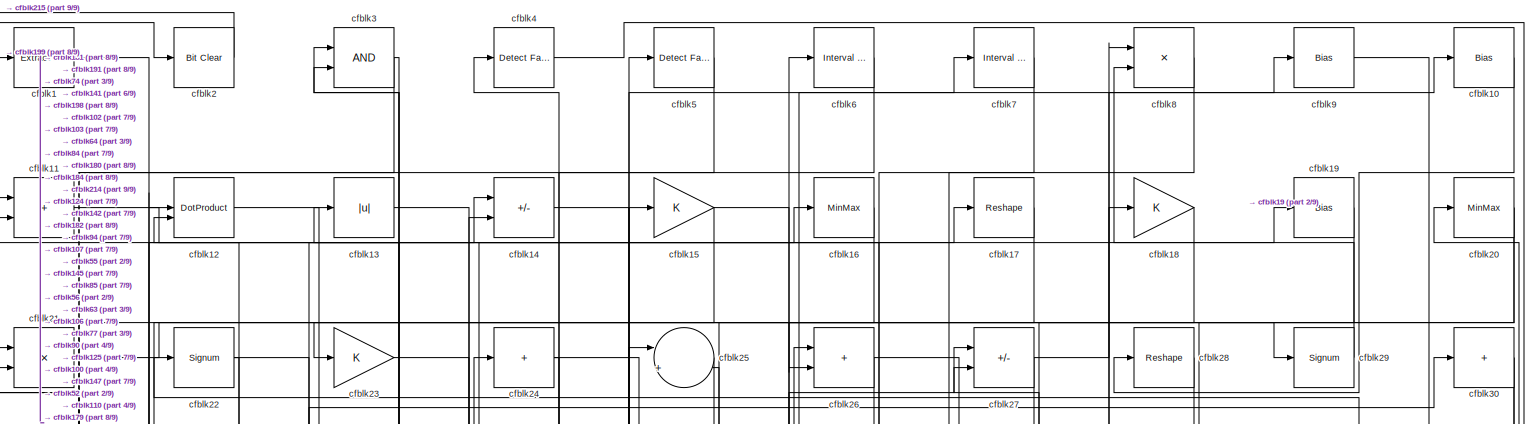
[diagram: root canvas - part 1/9, full width, top band]
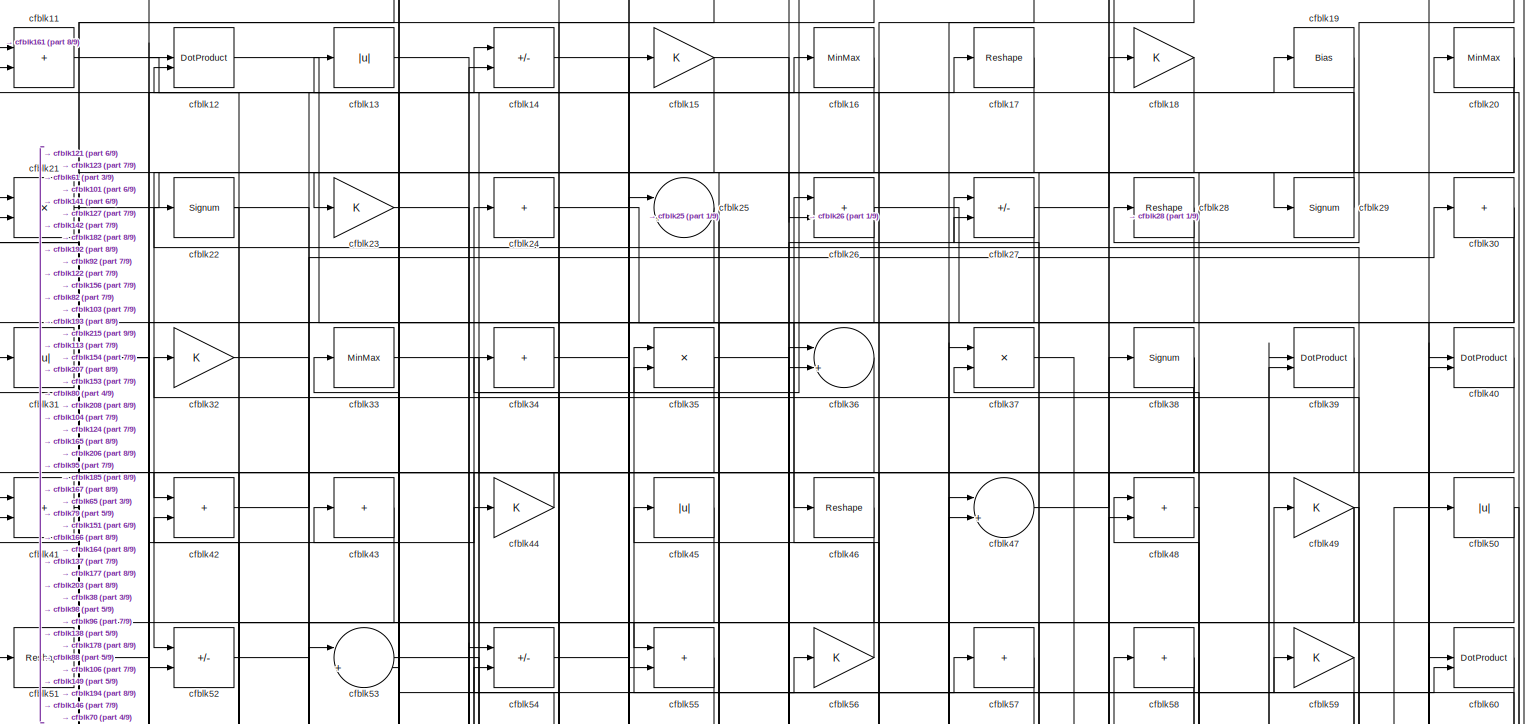
[diagram: root canvas - part 2/9, full width, top band]
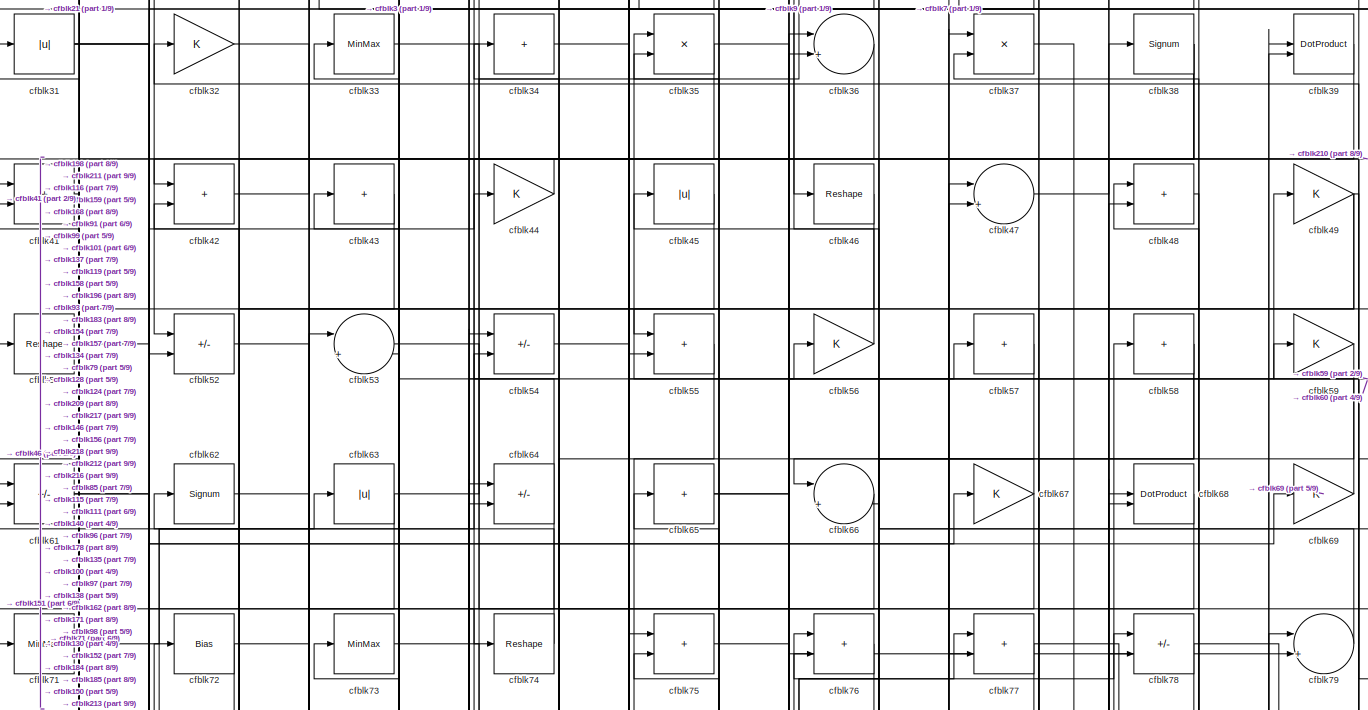
[diagram: root canvas - part 3/9, full width, top band]
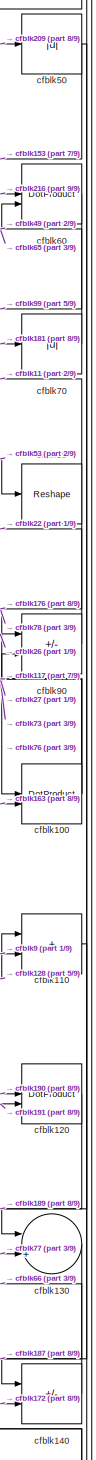
[diagram: root canvas - part 4/9, middle right region]
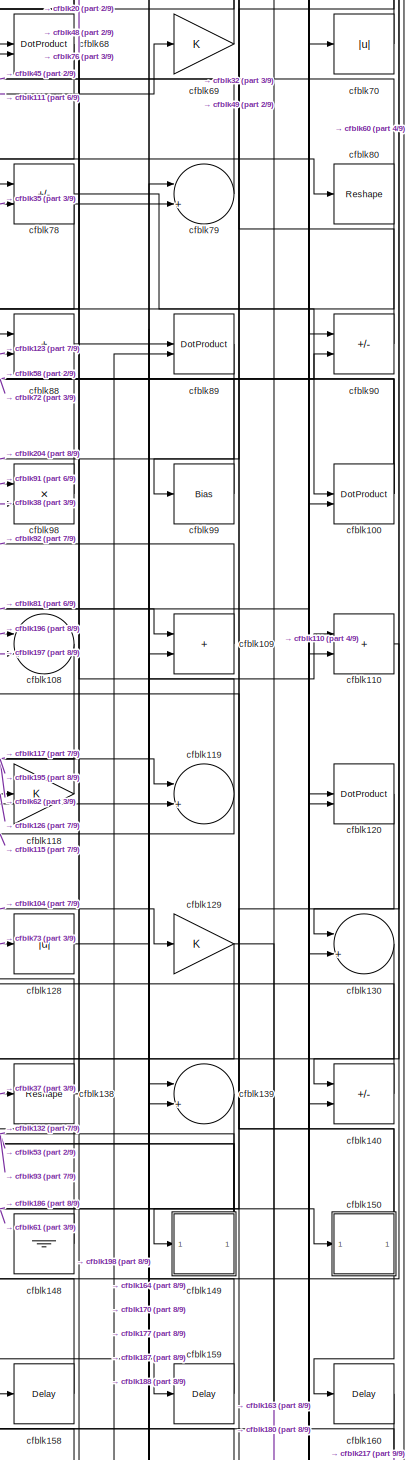
[diagram: root canvas - part 5/9, middle right region]
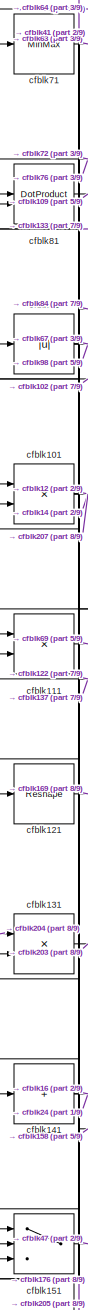
[diagram: root canvas - part 6/9, middle left region]
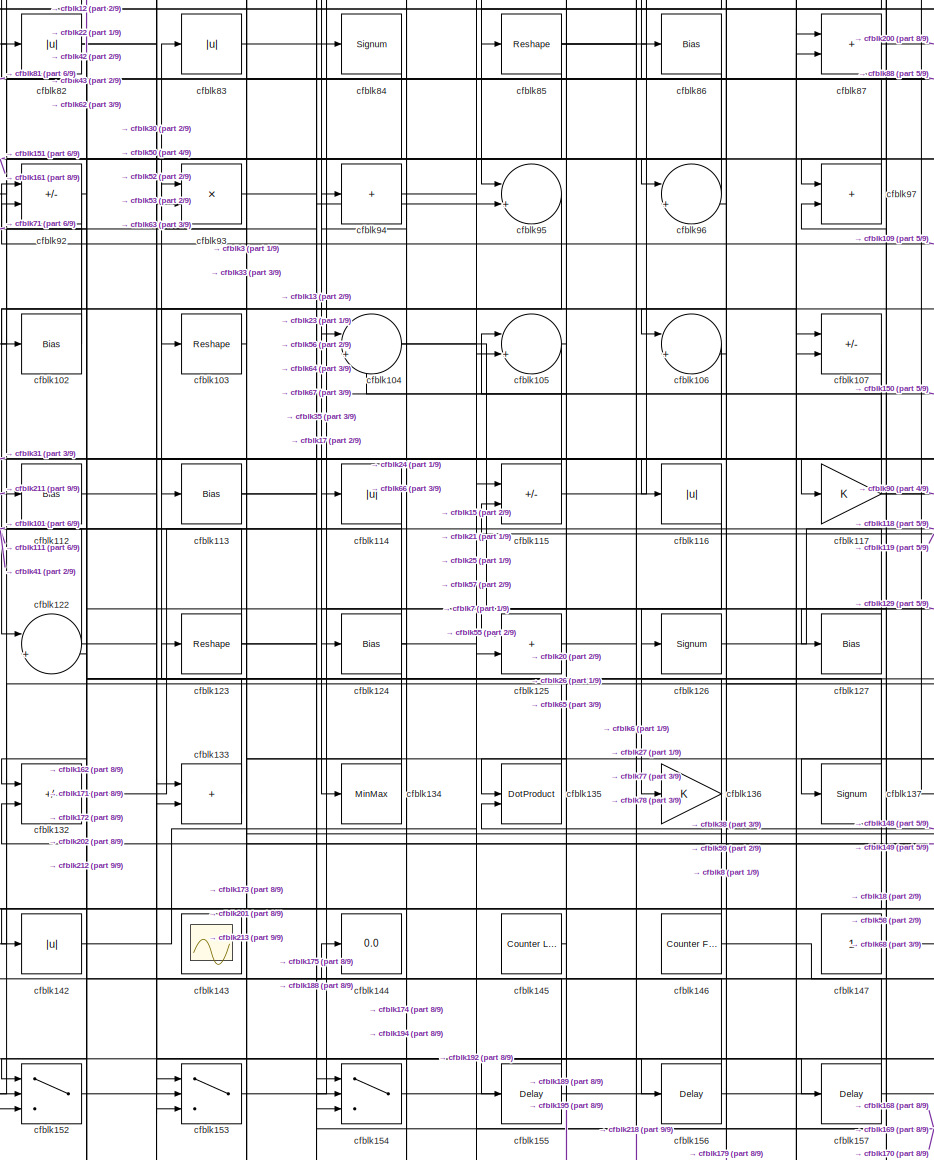
[diagram: root canvas - part 7/9, central region]
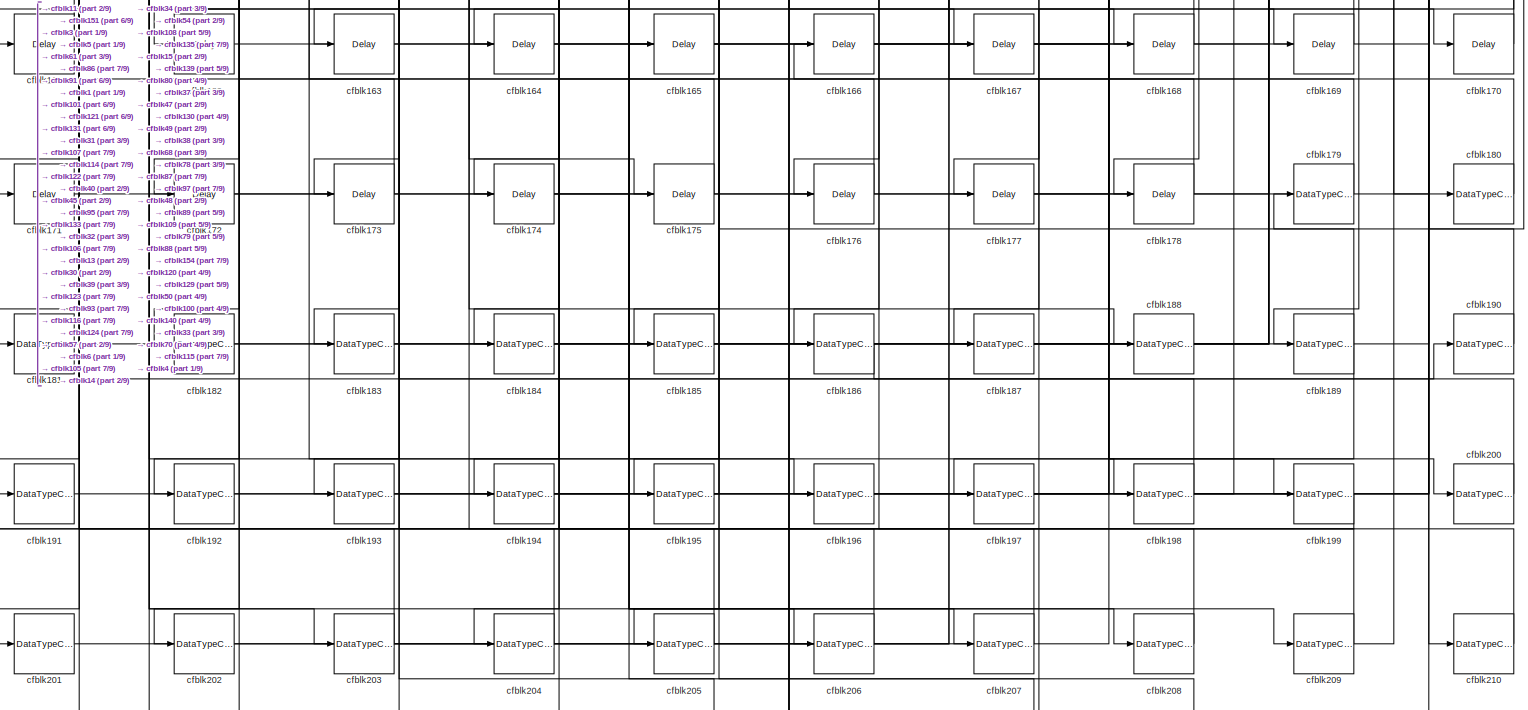
[diagram: root canvas - part 8/9, full width, bottom band]
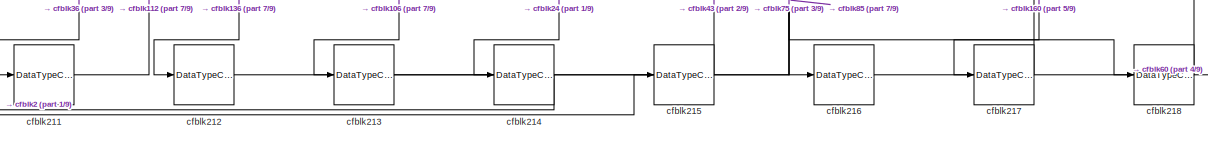
[diagram: root canvas - part 9/9, full width, bottom band]
MODEL slx_8fde7ab5940d
KIND model
CONFIG AbsTol = auto
CONFIG EnableMultiTasking = off
CONFIG FixedStep = auto
CONFIG MaxStep = auto
CONFIG MinStep = auto
CONFIG RelTol = 1e-3
CONFIG SampleTimeConstraint = Unconstrained
CONFIG SolverName = VariableStepAuto
CONFIG StartTime = 0.0
CONFIG StopTime = 10.0
BLOCK [Reference] cfblk1  REF=simulink/Logic and Bit
Operations/Extract Bits
  LibrarySourceBlock = hdlsllib/Logic and Bit\nOperations/Extract Bits
  SourceBlock = simulink/Logic and Bit\nOperations/Extract Bits
  SourceType = Extract Bits
BLOCK [Bias] cfblk10
  Bias = 0.0
  SaturateOnIntegerOverflow = off
BLOCK [DotProduct] cfblk100
  OutDataTypeStr = Inherit: Inherit via internal rule
BLOCK [Product] cfblk101
  Inputs = */
  RndMeth = Zero
  SaturateOnIntegerOverflow = on
BLOCK [Bias] cfblk102
  Bias = 0.0
  SaturateOnIntegerOverflow = off
BLOCK [Reshape] cfblk103
BLOCK [Sum] cfblk104
  Inputs = |++
BLOCK [Sum] cfblk105
  Inputs = |++
BLOCK [Sum] cfblk106
  Inputs = |++
BLOCK [Sum] cfblk107
  IconShape = rectangular
  Inputs = +-
BLOCK [Sum] cfblk108
  Inputs = |++
BLOCK [Sum] cfblk109
  IconShape = rectangular
BLOCK [Sum] cfblk11
  IconShape = rectangular
BLOCK [Sum] cfblk110
  IconShape = rectangular
BLOCK [Product] cfblk111
  Inputs = */
  RndMeth = Zero
  SaturateOnIntegerOverflow = on
BLOCK [Bias] cfblk112
  Bias = 0.0
  SaturateOnIntegerOverflow = off
BLOCK [Bias] cfblk113
  Bias = 0.0
  SaturateOnIntegerOverflow = off
BLOCK [Abs] cfblk114
  SaturateOnIntegerOverflow = off
BLOCK [Sum] cfblk115
  IconShape = rectangular
  Inputs = +-
BLOCK [Abs] cfblk116
  SaturateOnIntegerOverflow = off
BLOCK [Gain] cfblk117
BLOCK [Gain] cfblk118
BLOCK [Sum] cfblk119
  Inputs = |++
BLOCK [DotProduct] cfblk12
  OutDataTypeStr = Inherit: Inherit via internal rule
BLOCK [DotProduct] cfblk120
  OutDataTypeStr = Inherit: Inherit via internal rule
BLOCK [Reshape] cfblk121
BLOCK [Sum] cfblk122
  Inputs = |++
BLOCK [Reshape] cfblk123
BLOCK [Bias] cfblk124
  Bias = 0.0
  SaturateOnIntegerOverflow = off
BLOCK [Sum] cfblk125
  IconShape = rectangular
BLOCK [Signum] cfblk126
BLOCK [Bias] cfblk127
  Bias = 0.0
  SaturateOnIntegerOverflow = off
BLOCK [Abs] cfblk128
  SaturateOnIntegerOverflow = off
BLOCK [Gain] cfblk129
BLOCK [Abs] cfblk13
  SaturateOnIntegerOverflow = off
BLOCK [Sum] cfblk130
  Inputs = |++
BLOCK [Product] cfblk131
  Inputs = */
  RndMeth = Zero
  SaturateOnIntegerOverflow = on
BLOCK [Sum] cfblk132
  IconShape = rectangular
  Inputs = +-
BLOCK [Sum] cfblk133
  IconShape = rectangular
BLOCK [MinMax] cfblk134
BLOCK [DotProduct] cfblk135
  OutDataTypeStr = Inherit: Inherit via internal rule
BLOCK [Gain] cfblk136
BLOCK [Signum] cfblk137
BLOCK [Reshape] cfblk138
BLOCK [Sum] cfblk139
  Inputs = |++
BLOCK [Sum] cfblk14
  IconShape = rectangular
  Inputs = +-
BLOCK [Sum] cfblk140
  IconShape = rectangular
  Inputs = +-
BLOCK [Sum] cfblk141
  IconShape = rectangular
  Inputs = +
BLOCK [Abs] cfblk142
  SaturateOnIntegerOverflow = off
BLOCK [Scope] cfblk143
  Floating = on
  NumInputPorts = 1
  ScopeSpecificationString = Simulink.scopes.TimeScopeBlockCfg('CurrentConfiguration', extmgr.ConfigurationSet(extmgr.Configuration('Core','General UI',true,'FigureColor',[0.156862745098039 0.156862745098039 0.156862745098039]),extmgr.Configuration('Core','Source UI',true),extmgr.Configuration('Sources','WiredSimulink',true,'DataLoggingVariableName','ScopeData1','DataLoggingSaveFormat','StructureWithTime','DataLoggingLimitDat...<+2713ch>
BLOCK [Display] cfblk144
  Decimation = 1
BLOCK [Reference] cfblk145  REF=hdlsllib/Sources/Counter
Limited
  SourceBlock = hdlsllib/Sources/Counter\nLimited
  SourceType = Counter Limited
BLOCK [Reference] cfblk146  REF=hdlsllib/Sources/Counter
Free-Running
  SourceBlock = hdlsllib/Sources/Counter\nFree-Running
  SourceType = Counter Free-Running
BLOCK [Constant] cfblk147
  SampleTime = -1
BLOCK [Ground] cfblk148
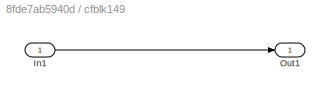
BLOCK [SubSystem] cfblk149
  LibrarySourceBlock = hdlsllib/Ports &\nSubsystems/Subsystem
BLOCK [Inport] cfblk149/In1
BLOCK [Outport] cfblk149/Out1
BLOCK [Gain] cfblk15
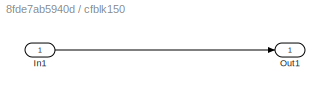
BLOCK [SubSystem] cfblk150
  LibrarySourceBlock = hdlsllib/Ports &\nSubsystems/Subsystem
BLOCK [Inport] cfblk150/In1
BLOCK [Outport] cfblk150/Out1
BLOCK [Switch] cfblk151
  InputSameDT = off
  SaturateOnIntegerOverflow = off
BLOCK [Switch] cfblk152
  InputSameDT = off
  SaturateOnIntegerOverflow = off
BLOCK [Switch] cfblk153
  InputSameDT = off
  SaturateOnIntegerOverflow = off
BLOCK [Switch] cfblk154
  InputSameDT = off
  SaturateOnIntegerOverflow = off
BLOCK [Delay] cfblk155
  InputPortMap = u0
  SampleTime = 1
BLOCK [Delay] cfblk156
  InputPortMap = u0
  SampleTime = 1
BLOCK [Delay] cfblk157
  InputPortMap = u0
  SampleTime = 1
BLOCK [Delay] cfblk158
  InputPortMap = u0
  SampleTime = 1
BLOCK [Delay] cfblk159
  InputPortMap = u0
  SampleTime = 1
BLOCK [MinMax] cfblk16
BLOCK [Delay] cfblk160
  InputPortMap = u0
  SampleTime = 1
BLOCK [Delay] cfblk161
  InputPortMap = u0
  SampleTime = 1
BLOCK [Delay] cfblk162
  InputPortMap = u0
  SampleTime = 1
BLOCK [Delay] cfblk163
  InputPortMap = u0
  SampleTime = 1
BLOCK [Delay] cfblk164
  InputPortMap = u0
  SampleTime = 1
BLOCK [Delay] cfblk165
  InputPortMap = u0
  SampleTime = 1
BLOCK [Delay] cfblk166
  InputPortMap = u0
  SampleTime = 1
BLOCK [Delay] cfblk167
  InputPortMap = u0
  SampleTime = 1
BLOCK [Delay] cfblk168
  InputPortMap = u0
  SampleTime = 1
BLOCK [Delay] cfblk169
  InputPortMap = u0
  SampleTime = 1
BLOCK [Reshape] cfblk17
BLOCK [Delay] cfblk170
  InputPortMap = u0
  SampleTime = 1
BLOCK [Delay] cfblk171
  InputPortMap = u0
  SampleTime = 1
BLOCK [Delay] cfblk172
  InputPortMap = u0
  SampleTime = 1
BLOCK [Delay] cfblk173
  InputPortMap = u0
  SampleTime = 1
BLOCK [Delay] cfblk174
  InputPortMap = u0
  SampleTime = 1
BLOCK [Delay] cfblk175
  InputPortMap = u0
  SampleTime = 1
BLOCK [Delay] cfblk176
  InputPortMap = u0
  SampleTime = 1
BLOCK [Delay] cfblk177
  InputPortMap = u0
  SampleTime = 1
BLOCK [Delay] cfblk178
  InputPortMap = u0
  SampleTime = 1
BLOCK [DataTypeConversion] cfblk179
  OutDataTypeStr = uint8
  RndMeth = Floor
  SaturateOnIntegerOverflow = off
BLOCK [Gain] cfblk18
BLOCK [DataTypeConversion] cfblk180
  OutDataTypeStr = uint8
  RndMeth = Floor
  SaturateOnIntegerOverflow = off
BLOCK [DataTypeConversion] cfblk181
  OutDataTypeStr = uint8
  RndMeth = Floor
  SaturateOnIntegerOverflow = off
BLOCK [DataTypeConversion] cfblk182
  OutDataTypeStr = uint8
  RndMeth = Floor
  SaturateOnIntegerOverflow = off
BLOCK [DataTypeConversion] cfblk183
  OutDataTypeStr = uint8
  RndMeth = Floor
  SaturateOnIntegerOverflow = off
BLOCK [DataTypeConversion] cfblk184
  OutDataTypeStr = uint8
  RndMeth = Floor
  SaturateOnIntegerOverflow = off
BLOCK [DataTypeConversion] cfblk185
  OutDataTypeStr = uint8
  RndMeth = Floor
  SaturateOnIntegerOverflow = off
BLOCK [DataTypeConversion] cfblk186
  OutDataTypeStr = uint8
  RndMeth = Floor
  SaturateOnIntegerOverflow = off
BLOCK [DataTypeConversion] cfblk187
  OutDataTypeStr = uint8
  RndMeth = Floor
  SaturateOnIntegerOverflow = off
BLOCK [DataTypeConversion] cfblk188
  OutDataTypeStr = uint8
  RndMeth = Floor
  SaturateOnIntegerOverflow = off
BLOCK [DataTypeConversion] cfblk189
  RndMeth = Floor
  SaturateOnIntegerOverflow = off
BLOCK [Bias] cfblk19
  Bias = 0.0
  SaturateOnIntegerOverflow = off
BLOCK [DataTypeConversion] cfblk190
  OutDataTypeStr = uint8
  RndMeth = Floor
  SaturateOnIntegerOverflow = off
BLOCK [DataTypeConversion] cfblk191
  OutDataTypeStr = uint8
  RndMeth = Floor
  SaturateOnIntegerOverflow = off
BLOCK [DataTypeConversion] cfblk192
  OutDataTypeStr = uint8
  RndMeth = Floor
  SaturateOnIntegerOverflow = off
BLOCK [DataTypeConversion] cfblk193
  OutDataTypeStr = uint8
  RndMeth = Floor
  SaturateOnIntegerOverflow = off
BLOCK [DataTypeConversion] cfblk194
  OutDataTypeStr = uint8
  RndMeth = Floor
  SaturateOnIntegerOverflow = off
BLOCK [DataTypeConversion] cfblk195
  OutDataTypeStr = uint8
  RndMeth = Floor
  SaturateOnIntegerOverflow = off
BLOCK [DataTypeConversion] cfblk196
  OutDataTypeStr = uint8
  RndMeth = Floor
  SaturateOnIntegerOverflow = off
BLOCK [DataTypeConversion] cfblk197
  OutDataTypeStr = uint8
  RndMeth = Floor
  SaturateOnIntegerOverflow = off
BLOCK [DataTypeConversion] cfblk198
  RndMeth = Floor
  SaturateOnIntegerOverflow = off
BLOCK [DataTypeConversion] cfblk199
  OutDataTypeStr = uint8
  RndMeth = Floor
  SaturateOnIntegerOverflow = off
BLOCK [Reference] cfblk2  REF=simulink/Logic and Bit
Operations/Bit Clear
  LibrarySourceBlock = hdlsllib/Logic and Bit\nOperations/Bit Clear
  SourceBlock = simulink/Logic and Bit\nOperations/Bit Clear
  SourceType = Bit Clear
BLOCK [MinMax] cfblk20
BLOCK [DataTypeConversion] cfblk200
  OutDataTypeStr = uint8
  RndMeth = Floor
  SaturateOnIntegerOverflow = off
BLOCK [DataTypeConversion] cfblk201
  OutDataTypeStr = uint8
  RndMeth = Floor
  SaturateOnIntegerOverflow = off
BLOCK [DataTypeConversion] cfblk202
  OutDataTypeStr = uint8
  RndMeth = Floor
  SaturateOnIntegerOverflow = off
BLOCK [DataTypeConversion] cfblk203
  RndMeth = Floor
  SaturateOnIntegerOverflow = off
BLOCK [DataTypeConversion] cfblk204
  OutDataTypeStr = uint8
  RndMeth = Floor
  SaturateOnIntegerOverflow = off
BLOCK [DataTypeConversion] cfblk205
  OutDataTypeStr = uint8
  RndMeth = Floor
  SaturateOnIntegerOverflow = off
BLOCK [DataTypeConversion] cfblk206
  OutDataTypeStr = uint8
  RndMeth = Floor
  SaturateOnIntegerOverflow = off
BLOCK [DataTypeConversion] cfblk207
  OutDataTypeStr = uint8
  RndMeth = Floor
  SaturateOnIntegerOverflow = off
BLOCK [DataTypeConversion] cfblk208
  OutDataTypeStr = uint8
  RndMeth = Floor
  SaturateOnIntegerOverflow = off
BLOCK [DataTypeConversion] cfblk209
  RndMeth = Floor
  SaturateOnIntegerOverflow = off
BLOCK [Product] cfblk21
  Inputs = */
  RndMeth = Zero
  SaturateOnIntegerOverflow = on
BLOCK [DataTypeConversion] cfblk210
  OutDataTypeStr = uint8
  RndMeth = Floor
  SaturateOnIntegerOverflow = off
BLOCK [DataTypeConversion] cfblk211
  OutDataTypeStr = uint8
  RndMeth = Floor
  SaturateOnIntegerOverflow = off
BLOCK [DataTypeConversion] cfblk212
  OutDataTypeStr = uint8
  RndMeth = Floor
  SaturateOnIntegerOverflow = off
BLOCK [DataTypeConversion] cfblk213
  OutDataTypeStr = uint8
  RndMeth = Floor
  SaturateOnIntegerOverflow = off
BLOCK [DataTypeConversion] cfblk214
  OutDataTypeStr = boolean
  RndMeth = Floor
  SaturateOnIntegerOverflow = off
BLOCK [DataTypeConversion] cfblk215
  OutDataTypeStr = uint8
  RndMeth = Floor
  SaturateOnIntegerOverflow = off
BLOCK [DataTypeConversion] cfblk216
  OutDataTypeStr = uint8
  RndMeth = Floor
  SaturateOnIntegerOverflow = off
BLOCK [DataTypeConversion] cfblk217
  OutDataTypeStr = uint8
  RndMeth = Floor
  SaturateOnIntegerOverflow = off
BLOCK [DataTypeConversion] cfblk218
  OutDataTypeStr = uint8
  RndMeth = Floor
  SaturateOnIntegerOverflow = off
BLOCK [Signum] cfblk22
BLOCK [Gain] cfblk23
BLOCK [Sum] cfblk24
  IconShape = rectangular
  Inputs = +
BLOCK [Sum] cfblk25
  Inputs = |++
BLOCK [Sum] cfblk26
  IconShape = rectangular
BLOCK [Sum] cfblk27
  IconShape = rectangular
  Inputs = +-
BLOCK [Reshape] cfblk28
BLOCK [Signum] cfblk29
BLOCK [Logic] cfblk3
  AllPortsSameDT = off
  OutDataTypeStr = boolean
BLOCK [Sum] cfblk30
  IconShape = rectangular
  Inputs = +
BLOCK [Abs] cfblk31
  SaturateOnIntegerOverflow = off
BLOCK [Gain] cfblk32
BLOCK [MinMax] cfblk33
BLOCK [Sum] cfblk34
  IconShape = rectangular
  Inputs = +
BLOCK [Product] cfblk35
  Inputs = */
  RndMeth = Zero
  SaturateOnIntegerOverflow = on
BLOCK [Sum] cfblk36
  Inputs = |++
BLOCK [Product] cfblk37
  Inputs = */
  RndMeth = Zero
  SaturateOnIntegerOverflow = on
BLOCK [Signum] cfblk38
BLOCK [DotProduct] cfblk39
  OutDataTypeStr = Inherit: Inherit via internal rule
BLOCK [Reference] cfblk4  REF=hdlsllib/Logic and Bit
Operations/Detect Fall
Negative
  SourceBlock = hdlsllib/Logic and Bit\nOperations/Detect Fall\nNegative
  SourceType = Detect Fall Negative
BLOCK [DotProduct] cfblk40
  OutDataTypeStr = Inherit: Inherit via internal rule
BLOCK [Sum] cfblk41
  IconShape = rectangular
BLOCK [Sum] cfblk42
  IconShape = rectangular
BLOCK [Sum] cfblk43
  IconShape = rectangular
  Inputs = +
BLOCK [Gain] cfblk44
BLOCK [Abs] cfblk45
  SaturateOnIntegerOverflow = off
BLOCK [Reshape] cfblk46
BLOCK [Sum] cfblk47
  Inputs = |++
BLOCK [Sum] cfblk48
  IconShape = rectangular
BLOCK [Gain] cfblk49
BLOCK [Reference] cfblk5  REF=hdlsllib/Logic and Bit
Operations/Detect Fall
Negative
  SourceBlock = hdlsllib/Logic and Bit\nOperations/Detect Fall\nNegative
  SourceType = Detect Fall Negative
BLOCK [Abs] cfblk50
  SaturateOnIntegerOverflow = off
BLOCK [Reshape] cfblk51
BLOCK [Sum] cfblk52
  IconShape = rectangular
  Inputs = +-
BLOCK [Sum] cfblk53
  Inputs = |++
BLOCK [Sum] cfblk54
  IconShape = rectangular
  Inputs = +-
BLOCK [Sum] cfblk55
  IconShape = rectangular
BLOCK [Gain] cfblk56
BLOCK [Sum] cfblk57
  IconShape = rectangular
  Inputs = +
BLOCK [Sum] cfblk58
  IconShape = rectangular
  Inputs = +
BLOCK [Gain] cfblk59
BLOCK [Reference] cfblk6  REF=hdlsllib/Logic and Bit
Operations/Interval Test
  SourceBlock = hdlsllib/Logic and Bit\nOperations/Interval Test
  SourceType = Interval Test
BLOCK [DotProduct] cfblk60
  OutDataTypeStr = Inherit: Inherit via internal rule
BLOCK [Sum] cfblk61
  IconShape = rectangular
  Inputs = +-
BLOCK [Signum] cfblk62
BLOCK [Abs] cfblk63
  SaturateOnIntegerOverflow = off
BLOCK [Sum] cfblk64
  IconShape = rectangular
  Inputs = +-
BLOCK [Sum] cfblk65
  IconShape = rectangular
  Inputs = +
BLOCK [Sum] cfblk66
  Inputs = |++
BLOCK [Gain] cfblk67
BLOCK [DotProduct] cfblk68
  OutDataTypeStr = Inherit: Inherit via internal rule
BLOCK [Gain] cfblk69
BLOCK [Reference] cfblk7  REF=hdlsllib/Logic and Bit
Operations/Interval Test
  SourceBlock = hdlsllib/Logic and Bit\nOperations/Interval Test
  SourceType = Interval Test
BLOCK [Abs] cfblk70
  SaturateOnIntegerOverflow = off
BLOCK [MinMax] cfblk71
BLOCK [Bias] cfblk72
  Bias = 0.0
  SaturateOnIntegerOverflow = off
BLOCK [MinMax] cfblk73
BLOCK [Reshape] cfblk74
BLOCK [Sum] cfblk75
  IconShape = rectangular
BLOCK [Sum] cfblk76
  IconShape = rectangular
BLOCK [Sum] cfblk77
  IconShape = rectangular
BLOCK [Sum] cfblk78
  IconShape = rectangular
  Inputs = +-
BLOCK [Sum] cfblk79
  Inputs = |++
BLOCK [Product] cfblk8
  Inputs = */
  RndMeth = Zero
  SaturateOnIntegerOverflow = on
BLOCK [Reshape] cfblk80
BLOCK [DotProduct] cfblk81
  OutDataTypeStr = Inherit: Inherit via internal rule
BLOCK [Abs] cfblk82
  SaturateOnIntegerOverflow = off
BLOCK [Abs] cfblk83
  SaturateOnIntegerOverflow = off
BLOCK [Signum] cfblk84
BLOCK [Reshape] cfblk85
BLOCK [Bias] cfblk86
  Bias = 0.0
  SaturateOnIntegerOverflow = off
BLOCK [Sum] cfblk87
  IconShape = rectangular
BLOCK [Sum] cfblk88
  IconShape = rectangular
BLOCK [DotProduct] cfblk89
  OutDataTypeStr = Inherit: Inherit via internal rule
BLOCK [Bias] cfblk9
  Bias = 0.0
  SaturateOnIntegerOverflow = off
BLOCK [Sum] cfblk90
  IconShape = rectangular
  Inputs = +-
BLOCK [Abs] cfblk91
  SaturateOnIntegerOverflow = off
BLOCK [Sum] cfblk92
  IconShape = rectangular
  Inputs = +-
BLOCK [Product] cfblk93
  Inputs = */
  RndMeth = Zero
  SaturateOnIntegerOverflow = on
BLOCK [Sum] cfblk94
  IconShape = rectangular
  Inputs = +
BLOCK [Sum] cfblk95
  Inputs = |++
BLOCK [Sum] cfblk96
  Inputs = |++
BLOCK [Sum] cfblk97
  IconShape = rectangular
BLOCK [Product] cfblk98
  Inputs = */
  RndMeth = Zero
  SaturateOnIntegerOverflow = on
BLOCK [Bias] cfblk99
  Bias = 0.0
  SaturateOnIntegerOverflow = off
NET cfblk100:1 -> cfblk27:2, cfblk73:1, cfblk76:1
NET cfblk101:1 -> cfblk12:1, cfblk14:2, cfblk207:1
LINE cfblk102:1 -> cfblk71:1
LINE cfblk103:1 -> cfblk3:1
NET cfblk104:1 -> cfblk129:1, cfblk57:1
NET cfblk105:1 -> cfblk153:3, cfblk155:1
NET cfblk106:1 -> cfblk201:1, cfblk213:1
NET cfblk107:1 -> cfblk125:1, cfblk171:1, cfblk172:1
LINE cfblk108:1 -> cfblk195:1
LINE cfblk109:1 -> cfblk92:1
LINE cfblk10:1 -> cfblk28:1
LINE cfblk110:1 -> cfblk130:1
LINE cfblk111:1 -> cfblk69:1
LINE cfblk112:1 -> cfblk153:1
NET cfblk113:1 -> cfblk56:1, cfblk95:2
LINE cfblk114:1 -> cfblk162:1
NET cfblk115:1 -> cfblk113:1, cfblk78:1
NET cfblk116:1 -> cfblk136:1, cfblk194:1
NET cfblk117:1 -> cfblk104:2, cfblk119:2, cfblk90:2
LINE cfblk118:1 -> cfblk117:1
NET cfblk119:1 -> cfblk115:2, cfblk37:2
LINE cfblk11:1 -> cfblk19:1
LINE cfblk120:1 -> cfblk189:1
LINE cfblk121:1 -> cfblk169:1
NET cfblk122:1 -> cfblk101:1, cfblk53:1
NET cfblk123:1 -> cfblk188:1, cfblk41:1, cfblk88:2
NET cfblk124:1 -> cfblk15:1, cfblk173:1, cfblk174:1, cfblk21:2
LINE cfblk125:1 -> cfblk6:1
LINE cfblk126:1 -> cfblk118:1
LINE cfblk127:1 -> cfblk42:2
LINE cfblk128:1 -> cfblk110:1
NET cfblk129:1 -> cfblk163:1, cfblk180:1
LINE cfblk12:1 -> cfblk46:1
LINE cfblk130:1 -> cfblk187:1
LINE cfblk131:1 -> cfblk203:1
LINE cfblk132:1 -> cfblk114:1
LINE cfblk133:1 -> cfblk81:1
LINE cfblk134:1 -> cfblk82:1
LINE cfblk135:1 -> cfblk83:1
NET cfblk136:1 -> cfblk212:1, cfblk94:1
NET cfblk137:1 -> cfblk111:2, cfblk152:2, cfblk62:1
NET cfblk138:1 -> cfblk48:1, cfblk76:2
LINE cfblk139:1 -> cfblk186:1
LINE cfblk13:1 -> cfblk154:1
LINE cfblk140:1 -> cfblk66:2
NET cfblk141:1 -> cfblk16:1, cfblk24:1
LINE cfblk142:1 -> cfblk25:1
LINE cfblk145:1 -> cfblk25:2
NET cfblk146:1 -> cfblk20:1, cfblk65:1
LINE cfblk147:1 -> cfblk8:1
LINE cfblk148:1 -> cfblk126:1
LINE cfblk149/In1:1 -> cfblk149/Out1:1
NET cfblk149:1 -> cfblk132:2, cfblk53:2, cfblk93:1
LINE cfblk14:1 -> cfblk165:1
LINE cfblk150/In1:1 -> cfblk150/Out1:1
NET cfblk150:1 -> cfblk104:1, cfblk160:1, cfblk32:1
LINE cfblk151:1 -> cfblk47:1
LINE cfblk152:1 -> cfblk144:1
LINE cfblk153:1 -> cfblk17:1
LINE cfblk154:1 -> cfblk68:1
LINE cfblk155:1 -> cfblk92:2
LINE cfblk156:1 -> cfblk35:2
LINE cfblk157:1 -> cfblk64:1
LINE cfblk158:1 -> cfblk81:2
LINE cfblk159:1 -> cfblk89:1
NET cfblk15:1 -> cfblk141:1, cfblk167:1
LINE cfblk160:1 -> cfblk217:1
LINE cfblk161:1 -> cfblk11:1
LINE cfblk162:1 -> cfblk78:2
LINE cfblk163:1 -> cfblk100:2
LINE cfblk164:1 -> cfblk109:2
LINE cfblk165:1 -> cfblk205:1
LINE cfblk166:1 -> cfblk47:2
LINE cfblk167:1 -> cfblk199:1
LINE cfblk168:1 -> cfblk97:2
LINE cfblk169:1 -> cfblk154:2
LINE cfblk16:1 -> cfblk55:1
LINE cfblk170:1 -> cfblk115:1
LINE cfblk171:1 -> cfblk68:2
LINE cfblk172:1 -> cfblk140:2
LINE cfblk173:1 -> cfblk122:2
LINE cfblk174:1 -> cfblk208:1
LINE cfblk175:1 -> cfblk133:1
LINE cfblk176:1 -> cfblk151:3
LINE cfblk177:1 -> cfblk79:1
LINE cfblk178:1 -> cfblk37:1
LINE cfblk179:1 -> cfblk86:1
LINE cfblk17:1 -> cfblk52:1
LINE cfblk180:1 -> cfblk4:1
LINE cfblk181:1 -> cfblk70:1
LINE cfblk182:1 -> cfblk5:1
LINE cfblk183:1 -> cfblk38:1
LINE cfblk184:1 -> cfblk39:1
LINE cfblk185:1 -> cfblk39:2
LINE cfblk186:1 -> cfblk190:1
LINE cfblk187:1 -> cfblk139:1
LINE cfblk188:1 -> cfblk139:2
NET cfblk189:1 -> cfblk135:2, cfblk197:1
LINE cfblk18:1 -> cfblk137:1
LINE cfblk190:1 -> cfblk120:1
LINE cfblk191:1 -> cfblk120:2
LINE cfblk192:1 -> cfblk105:2
LINE cfblk193:1 -> cfblk40:1
LINE cfblk194:1 -> cfblk40:2
LINE cfblk195:1 -> cfblk105:1
LINE cfblk196:1 -> cfblk108:1
LINE cfblk197:1 -> cfblk108:2
NET cfblk198:1 -> cfblk61:2, cfblk89:2
LINE cfblk199:1 -> cfblk1:1
LINE cfblk19:1 -> cfblk26:2
LINE cfblk1:1 -> cfblk198:1
LINE cfblk200:1 -> cfblk123:1
LINE cfblk201:1 -> cfblk87:1
LINE cfblk202:1 -> cfblk87:2
NET cfblk203:1 -> cfblk48:2, cfblk91:1
LINE cfblk204:1 -> cfblk131:1
LINE cfblk205:1 -> cfblk131:2
LINE cfblk206:1 -> cfblk13:1
LINE cfblk207:1 -> cfblk54:1
LINE cfblk208:1 -> cfblk54:2
NET cfblk209:1 -> cfblk166:1, cfblk50:1
NET cfblk20:1 -> cfblk103:1, cfblk88:1
LINE cfblk210:1 -> cfblk34:1
LINE cfblk211:1 -> cfblk112:1
LINE cfblk212:1 -> cfblk36:1
LINE cfblk213:1 -> cfblk36:2
LINE cfblk214:1 -> cfblk2:1
LINE cfblk215:1 -> cfblk43:1
LINE cfblk216:1 -> cfblk60:1
LINE cfblk217:1 -> cfblk75:1
LINE cfblk218:1 -> cfblk75:2
LINE cfblk21:1 -> cfblk29:1
NET cfblk22:1 -> cfblk102:1, cfblk107:2
LINE cfblk23:1 -> cfblk84:1
NET cfblk24:1 -> cfblk107:1, cfblk214:1
LINE cfblk25:1 -> cfblk55:2
NET cfblk26:1 -> cfblk85:1, cfblk90:1
NET cfblk27:1 -> cfblk10:1, cfblk125:2
LINE cfblk28:1 -> cfblk52:2
LINE cfblk29:1 -> cfblk8:2
LINE cfblk2:1 -> cfblk215:1
NET cfblk30:1 -> cfblk193:1, cfblk51:1
NET cfblk31:1 -> cfblk116:1, cfblk168:1, cfblk74:1
LINE cfblk32:1 -> cfblk196:1
LINE cfblk33:1 -> cfblk210:1
LINE cfblk34:1 -> cfblk209:1
NET cfblk35:1 -> cfblk134:1, cfblk79:2
LINE cfblk36:1 -> cfblk211:1
LINE cfblk37:1 -> cfblk138:1
NET cfblk38:1 -> cfblk41:2, cfblk96:1, cfblk98:2
LINE cfblk39:1 -> cfblk183:1
NET cfblk3:1 -> cfblk191:1, cfblk23:1
LINE cfblk40:1 -> cfblk192:1
LINE cfblk41:1 -> cfblk121:1
LINE cfblk42:1 -> cfblk14:1
LINE cfblk43:1 -> cfblk142:1
LINE cfblk44:1 -> cfblk42:1
LINE cfblk45:1 -> cfblk182:1
LINE cfblk46:1 -> cfblk61:1
LINE cfblk47:1 -> cfblk18:1
LINE cfblk48:1 -> cfblk178:1
NET cfblk49:1 -> cfblk149:1, cfblk177:1, cfblk185:1
LINE cfblk4:1 -> cfblk179:1
NET cfblk50:1 -> cfblk140:1, cfblk153:2
LINE cfblk51:1 -> cfblk44:1
LINE cfblk52:1 -> cfblk156:1
LINE cfblk53:1 -> cfblk80:1
LINE cfblk54:1 -> cfblk206:1
LINE cfblk55:1 -> cfblk95:1
LINE cfblk56:1 -> cfblk26:1
LINE cfblk57:1 -> cfblk164:1
NET cfblk58:1 -> cfblk127:1, cfblk96:2
LINE cfblk59:1 -> cfblk106:2
LINE cfblk5:1 -> cfblk181:1
LINE cfblk60:1 -> cfblk99:1
NET cfblk61:1 -> cfblk150:1, cfblk159:1
LINE cfblk62:1 -> cfblk119:1
NET cfblk63:1 -> cfblk93:2, cfblk9:1
NET cfblk64:1 -> cfblk151:2, cfblk3:2
NET cfblk65:1 -> cfblk59:1, cfblk60:2
LINE cfblk66:1 -> cfblk124:1
NET cfblk67:1 -> cfblk154:3, cfblk66:1
LINE cfblk68:1 -> cfblk97:1
LINE cfblk69:1 -> cfblk35:1
LINE cfblk6:1 -> cfblk184:1
LINE cfblk70:1 -> cfblk49:1
LINE cfblk71:1 -> cfblk63:1
NET cfblk72:1 -> cfblk101:2, cfblk158:1
LINE cfblk73:1 -> cfblk128:1
LINE cfblk74:1 -> cfblk21:1
LINE cfblk75:1 -> cfblk216:1
LINE cfblk76:1 -> cfblk111:1
NET cfblk77:1 -> cfblk130:2, cfblk135:1
NET cfblk78:1 -> cfblk100:1, cfblk152:1
LINE cfblk79:1 -> cfblk45:1
LINE cfblk7:1 -> cfblk77:2
NET cfblk80:1 -> cfblk11:2, cfblk176:1
LINE cfblk81:1 -> cfblk109:1
NET cfblk82:1 -> cfblk133:2, cfblk30:1
LINE cfblk83:1 -> cfblk157:1
LINE cfblk84:1 -> cfblk151:1
NET cfblk85:1 -> cfblk152:3, cfblk218:1, cfblk27:1, cfblk77:1
NET cfblk86:1 -> cfblk132:1, cfblk161:1
LINE cfblk87:1 -> cfblk200:1
LINE cfblk88:1 -> cfblk170:1
LINE cfblk89:1 -> cfblk204:1
LINE cfblk8:1 -> cfblk106:1
LINE cfblk90:1 -> cfblk22:1
NET cfblk91:1 -> cfblk64:2, cfblk67:1, cfblk98:1
NET cfblk92:1 -> cfblk122:1, cfblk12:2
LINE cfblk93:1 -> cfblk175:1
LINE cfblk94:1 -> cfblk7:1
LINE cfblk95:1 -> cfblk202:1
LINE cfblk96:1 -> cfblk31:1
LINE cfblk97:1 -> cfblk33:1
LINE cfblk98:1 -> cfblk58:1
LINE cfblk99:1 -> cfblk72:1
LINE cfblk9:1 -> cfblk110:2
note: NET lines group one-source signal fan-out (src -> all destinations, sorted); 1:1 wires keep LINE
